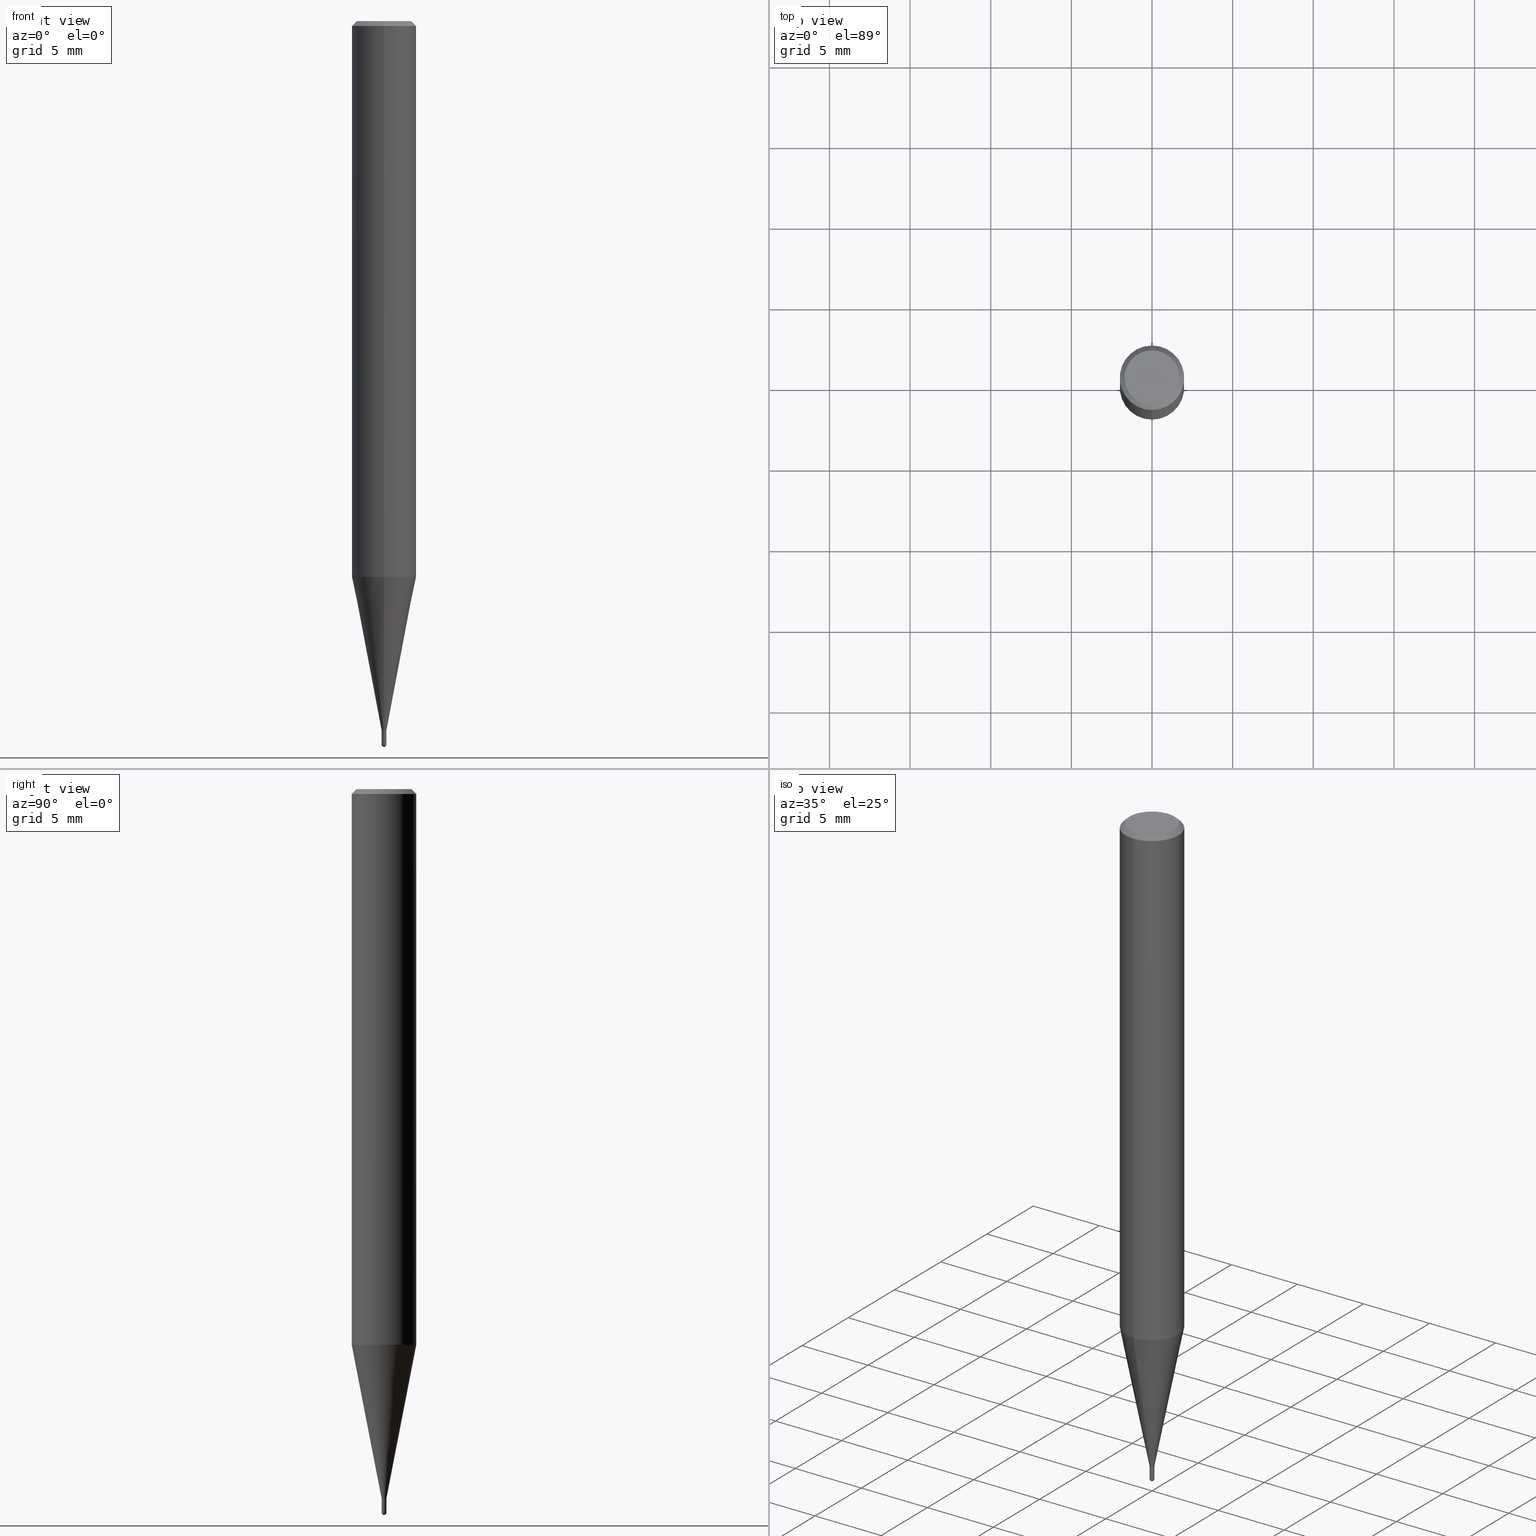
[diagram: canonical four-view strip — front | top / right | iso, engineering-drawing reading convention]
A machine part, canonical four-view strip (front | top / right | iso — engineering-drawing reading convention). The complete STEP part file that produces these views, byte-faithful:
ISO-10303-21;
HEADER;
FILE_DESCRIPTION(('no description'),'unknown implementation level');
FILE_NAME('CSELB2003-010-Huellk.stp','  ',('CIMSOURCE GmbH'),('CADClick - KiM GmbH - www.kimweb.de'),'unknown preprocess','ACIS','unknown authorization');
FILE_SCHEMA(('automotive_design'));
ENDSEC;
DATA;
#1=MECHANICAL_DESIGN_GEOMETRIC_PRESENTATION_REPRESENTATION(' ',(#14,#15,#16,#17,#18,#19,#20,#21,#22,#23,#24,#25,#26,#27,#28,#29,#30,#31,#32,#33,#34,#35,#36,#37,#38,#39,#40,#41,#42,#43,#44,#45,#46,#47,#48,#49,#50,#51,#52,#53,#54,#55,#56,#57,#58,#59,#60,#61,#62,#63,#64,#65,#66,#67,#68,#69,#70,#71,#72,#73,#74),#10);
#2=PRODUCT_DEFINITION_CONTEXT('',#75,'design');
#3=APPLICATION_PROTOCOL_DEFINITION('INTERNATIONAL STANDARD','automotive_design',1994,#75);
#4=PRODUCT_CATEGORY_RELATIONSHIP('NONE','NONE',#76,#77);
#5=SHAPE_DEFINITION_REPRESENTATION(#78,#79);
#6=PRODUCT_DEFINITION_CONTEXT('',#80,'design');
#7=APPLICATION_PROTOCOL_DEFINITION('INTERNATIONAL STANDARD','automotive_design',1994,#80);
#8=PRODUCT_CATEGORY_RELATIONSHIP('NONE','NONE',#81,#82);
#9=SHAPE_DEFINITION_REPRESENTATION(#83,#84);
#10= (GEOMETRIC_REPRESENTATION_CONTEXT(3)GLOBAL_UNCERTAINTY_ASSIGNED_CONTEXT((#87))GLOBAL_UNIT_ASSIGNED_CONTEXT((#89,#90,#91))REPRESENTATION_CONTEXT('NONE','WORKSPACE'));
#14=STYLED_ITEM('',(#93),#94);
#15=STYLED_ITEM('',(#95),#96);
#16=STYLED_ITEM('',(#97),#98);
#17=STYLED_ITEM('',(#99),#100);
#18=STYLED_ITEM('',(#101),#102);
#19=STYLED_ITEM('',(#103),#104);
#20=STYLED_ITEM('',(#105),#106);
#21=STYLED_ITEM('',(#107),#108);
#22=STYLED_ITEM('',(#109),#110);
#23=STYLED_ITEM('',(#111),#112);
#24=STYLED_ITEM('',(#113),#114);
#25=STYLED_ITEM('',(#115),#116);
#26=STYLED_ITEM('',(#117),#118);
#27=STYLED_ITEM('',(#119),#120);
#28=STYLED_ITEM('',(#121),#122);
#29=STYLED_ITEM('',(#123),#124);
#30=STYLED_ITEM('',(#125),#126);
#31=STYLED_ITEM('',(#127),#128);
#32=STYLED_ITEM('',(#129),#130);
#33=STYLED_ITEM('',(#131),#132);
#34=STYLED_ITEM('',(#133),#134);
#35=STYLED_ITEM('',(#135),#136);
#36=STYLED_ITEM('',(#137),#138);
#37=STYLED_ITEM('',(#139),#140);
#38=STYLED_ITEM('',(#141),#142);
#39=STYLED_ITEM('',(#143),#144);
#40=STYLED_ITEM('',(#145),#146);
#41=STYLED_ITEM('',(#147),#148);
#42=STYLED_ITEM('',(#149),#150);
#43=STYLED_ITEM('',(#151),#152);
#44=STYLED_ITEM('',(#153),#154);
#45=STYLED_ITEM('',(#155),#156);
#46=STYLED_ITEM('',(#157),#158);
#47=STYLED_ITEM('',(#159),#160);
#48=STYLED_ITEM('',(#161),#162);
#49=STYLED_ITEM('',(#163),#164);
#50=STYLED_ITEM('',(#165),#166);
#51=STYLED_ITEM('',(#167),#168);
#52=STYLED_ITEM('',(#169),#170);
#53=STYLED_ITEM('',(#171),#172);
#54=STYLED_ITEM('',(#173),#174);
#55=STYLED_ITEM('',(#175),#176);
#56=STYLED_ITEM('',(#177),#178);
#57=STYLED_ITEM('',(#179),#180);
#58=STYLED_ITEM('',(#181),#182);
#59=STYLED_ITEM('',(#183),#184);
#60=STYLED_ITEM('',(#185),#186);
#61=STYLED_ITEM('',(#187),#188);
#62=STYLED_ITEM('',(#189),#190);
#63=STYLED_ITEM('',(#191),#192);
#64=STYLED_ITEM('',(#193),#194);
#65=STYLED_ITEM('',(#195),#196);
#66=STYLED_ITEM('',(#197),#198);
#67=STYLED_ITEM('',(#199),#200);
#68=STYLED_ITEM('',(#201),#202);
#69=STYLED_ITEM('',(#203),#204);
#70=STYLED_ITEM('',(#205),#206);
#71=STYLED_ITEM('',(#207),#208);
#72=STYLED_ITEM('',(#209),#210);
#73=STYLED_ITEM('',(#211),#212);
#74=STYLED_ITEM('',(#213),#214);
#75=APPLICATION_CONTEXT(' ');
#76=PRODUCT_CATEGORY('part','NONE');
#77=PRODUCT_RELATED_PRODUCT_CATEGORY('detail',' ',(#215));
#78=PRODUCT_DEFINITION_SHAPE('NONE','NONE',#216);
#79=ADVANCED_BREP_SHAPE_REPRESENTATION('1',(#172,#217),#10);
#80=APPLICATION_CONTEXT(' ');
#81=PRODUCT_CATEGORY('part','NONE');
#82=PRODUCT_RELATED_PRODUCT_CATEGORY('detail',' ',(#218));
#83=PRODUCT_DEFINITION_SHAPE('NONE','NONE',#219);
#84=ADVANCED_BREP_SHAPE_REPRESENTATION('2',(#154,#220),#10);
#87=UNCERTAINTY_MEASURE_WITH_UNIT(LENGTH_MEASURE(1.0E-006),#89,'','');
#89= (CONVERSION_BASED_UNIT('MILLIMETRE',#223)LENGTH_UNIT()NAMED_UNIT(#226));
#90= (NAMED_UNIT(#228)PLANE_ANGLE_UNIT()SI_UNIT($,.RADIAN.));
#91= (NAMED_UNIT(#228)SOLID_ANGLE_UNIT()SI_UNIT($,.STERADIAN.));
#93=PRESENTATION_STYLE_ASSIGNMENT((#234));
#94=VERTEX_POINT('',#235);
#95=PRESENTATION_STYLE_ASSIGNMENT((#236));
#96=EDGE_CURVE('',#132,#188,#237,.T.);
#97=PRESENTATION_STYLE_ASSIGNMENT((#238));
#98=EDGE_CURVE('',#188,#160,#239,.T.);
#99=PRESENTATION_STYLE_ASSIGNMENT((#240));
#100=EDGE_CURVE('',#198,#178,#241,.T.);
#101=PRESENTATION_STYLE_ASSIGNMENT((#242));
#102=ADVANCED_FACE('',(#243),#244,.T.);
#103=PRESENTATION_STYLE_ASSIGNMENT((#245));
#104=ADVANCED_FACE('',(#246),#247,.T.);
#105=PRESENTATION_STYLE_ASSIGNMENT((#248));
#106=EDGE_CURVE('',#110,#180,#249,.T.);
#107=PRESENTATION_STYLE_ASSIGNMENT((#250));
#108=ADVANCED_FACE('',(#251),#252,.T.);
#109=PRESENTATION_STYLE_ASSIGNMENT((#253));
#110=VERTEX_POINT('',#254);
#111=PRESENTATION_STYLE_ASSIGNMENT((#255));
#112=VERTEX_POINT('',#256);
#113=PRESENTATION_STYLE_ASSIGNMENT((#257));
#114=EDGE_CURVE('',#126,#166,#258,.T.);
#115=PRESENTATION_STYLE_ASSIGNMENT((#259));
#116=EDGE_CURVE('',#198,#126,#260,.T.);
#117=PRESENTATION_STYLE_ASSIGNMENT((#261));
#118=EDGE_CURVE('',#192,#112,#262,.T.);
#119=PRESENTATION_STYLE_ASSIGNMENT((#263));
#120=EDGE_CURVE('',#196,#144,#264,.T.);
#121=PRESENTATION_STYLE_ASSIGNMENT((#265));
#122=ADVANCED_FACE('',(#266),#267,.T.);
#123=PRESENTATION_STYLE_ASSIGNMENT((#268));
#124=ADVANCED_FACE('',(#269),#270,.T.);
#125=PRESENTATION_STYLE_ASSIGNMENT((#271));
#126=VERTEX_POINT('',#272);
#127=PRESENTATION_STYLE_ASSIGNMENT((#273));
#128=EDGE_CURVE('',#188,#132,#274,.T.);
#129=PRESENTATION_STYLE_ASSIGNMENT((#275));
#130=EDGE_CURVE('',#160,#94,#276,.T.);
#131=PRESENTATION_STYLE_ASSIGNMENT((#277));
#132=VERTEX_POINT('',#278);
#133=PRESENTATION_STYLE_ASSIGNMENT((#279));
#134=EDGE_CURVE('',#192,#188,#280,.T.);
#135=PRESENTATION_STYLE_ASSIGNMENT((#281));
#136=EDGE_CURVE('',#150,#210,#282,.T.);
#137=PRESENTATION_STYLE_ASSIGNMENT((#283));
#138=EDGE_CURVE('',#210,#150,#284,.T.);
#139=PRESENTATION_STYLE_ASSIGNMENT((#285));
#140=EDGE_CURVE('',#126,#144,#286,.T.);
#141=PRESENTATION_STYLE_ASSIGNMENT((#287));
#142=ADVANCED_FACE('',(#288),#289,.T.);
#143=PRESENTATION_STYLE_ASSIGNMENT((#290));
#144=VERTEX_POINT('',#291);
#145=PRESENTATION_STYLE_ASSIGNMENT((#292));
#146=EDGE_CURVE('',#144,#126,#293,.T.);
#147=PRESENTATION_STYLE_ASSIGNMENT((#294));
#148=ADVANCED_FACE('',(#295),#296,.T.);
#149=PRESENTATION_STYLE_ASSIGNMENT((#297));
#150=VERTEX_POINT('',#298);
#151=PRESENTATION_STYLE_ASSIGNMENT((#299));
#152=ADVANCED_FACE('',(#300),#301,.T.);
#153=PRESENTATION_STYLE_ASSIGNMENT((#302));
#154=MANIFOLD_SOLID_BREP('2',#303);
#155=PRESENTATION_STYLE_ASSIGNMENT((#304));
#156=EDGE_CURVE('',#150,#110,#305,.T.);
#157=PRESENTATION_STYLE_ASSIGNMENT((#306));
#158=ADVANCED_FACE('',(#307),#308,.T.);
#159=PRESENTATION_STYLE_ASSIGNMENT((#309));
#160=VERTEX_POINT('',#310);
#161=PRESENTATION_STYLE_ASSIGNMENT((#311));
#162=ADVANCED_FACE('',(#312),#313,.T.);
#163=PRESENTATION_STYLE_ASSIGNMENT((#314));
#164=EDGE_CURVE('',#94,#132,#315,.T.);
#165=PRESENTATION_STYLE_ASSIGNMENT((#316));
#166=VERTEX_POINT('',#317);
#167=PRESENTATION_STYLE_ASSIGNMENT((#318));
#168=EDGE_CURVE('',#196,#166,#319,.T.);
#169=PRESENTATION_STYLE_ASSIGNMENT((#320));
#170=EDGE_CURVE('',#180,#110,#321,.T.);
#171=PRESENTATION_STYLE_ASSIGNMENT((#322));
#172=MANIFOLD_SOLID_BREP('1',#323);
#173=PRESENTATION_STYLE_ASSIGNMENT((#324));
#174=EDGE_CURVE('',#180,#110,#325,.T.);
#175=PRESENTATION_STYLE_ASSIGNMENT((#326));
#176=EDGE_CURVE('',#166,#196,#327,.T.);
#177=PRESENTATION_STYLE_ASSIGNMENT((#328));
#178=VERTEX_POINT('',#329);
#179=PRESENTATION_STYLE_ASSIGNMENT((#330));
#180=VERTEX_POINT('',#331);
#181=PRESENTATION_STYLE_ASSIGNMENT((#332));
#182=EDGE_CURVE('',#178,#198,#333,.T.);
#183=PRESENTATION_STYLE_ASSIGNMENT((#334));
#184=EDGE_CURVE('',#180,#210,#335,.T.);
#185=PRESENTATION_STYLE_ASSIGNMENT((#336));
#186=ADVANCED_FACE('',(#337,#338),#339,.T.);
#187=PRESENTATION_STYLE_ASSIGNMENT((#340));
#188=VERTEX_POINT('',#341);
#189=PRESENTATION_STYLE_ASSIGNMENT((#342));
#190=EDGE_CURVE('',#94,#160,#343,.T.);
#191=PRESENTATION_STYLE_ASSIGNMENT((#344));
#192=VERTEX_POINT('',#345);
#193=PRESENTATION_STYLE_ASSIGNMENT((#346));
#194=EDGE_CURVE('',#112,#192,#347,.T.);
#195=PRESENTATION_STYLE_ASSIGNMENT((#348));
#196=VERTEX_POINT('',#349);
#197=PRESENTATION_STYLE_ASSIGNMENT((#350));
#198=VERTEX_POINT('',#351);
#199=PRESENTATION_STYLE_ASSIGNMENT((#352));
#200=EDGE_CURVE('',#144,#178,#353,.T.);
#201=PRESENTATION_STYLE_ASSIGNMENT((#354));
#202=ADVANCED_FACE('',(#355),#356,.T.);
#203=PRESENTATION_STYLE_ASSIGNMENT((#357));
#204=ADVANCED_FACE('',(#358),#359,.T.);
#205=PRESENTATION_STYLE_ASSIGNMENT((#360));
#206=EDGE_CURVE('',#132,#112,#361,.T.);
#207=PRESENTATION_STYLE_ASSIGNMENT((#362));
#208=ADVANCED_FACE('',(#363),#364,.T.);
#209=PRESENTATION_STYLE_ASSIGNMENT((#365));
#210=VERTEX_POINT('',#366);
#211=PRESENTATION_STYLE_ASSIGNMENT((#367));
#212=ADVANCED_FACE('',(#368),#369,.T.);
#213=PRESENTATION_STYLE_ASSIGNMENT((#370));
#214=ADVANCED_FACE('',(#371),#372,.T.);
#215=PRODUCT('1','1','PART-1-DESC',(#373));
#216=PRODUCT_DEFINITION('NONE','NONE',#374,#2);
#217=AXIS2_PLACEMENT_3D('',#375,#376,#377);
#218=PRODUCT('2','2','PART-2-DESC',(#378));
#219=PRODUCT_DEFINITION('NONE','NONE',#379,#6);
#220=AXIS2_PLACEMENT_3D('',#380,#381,#382);
#223=LENGTH_MEASURE_WITH_UNIT(LENGTH_MEASURE(1.0),#383);
#226=DIMENSIONAL_EXPONENTS(1.0,0.0,0.0,0.0,0.0,0.0,0.0);
#228=DIMENSIONAL_EXPONENTS(0.0,0.0,0.0,0.0,0.0,0.0,0.0);
#234=POINT_STYLE(' ',#384,POSITIVE_LENGTH_MEASURE(1.0E-006),#385);
#235=CARTESIAN_POINT('',(1.77506690986554E-017,-0.14495,-44.76));
#236=CURVE_STYLE('',#386,POSITIVE_LENGTH_MEASURE(1.0E-006),#387);
#237=CIRCLE('',#388,0.14495);
#238=CURVE_STYLE('',#389,POSITIVE_LENGTH_MEASURE(1.0E-006),#390);
#239=LINE('',#391,#392);
#240=CURVE_STYLE('',#393,POSITIVE_LENGTH_MEASURE(1.0E-006),#394);
#241=CIRCLE('',#395,1.7);
#242=SURFACE_STYLE_USAGE(.BOTH.,#396);
#243=FACE_OUTER_BOUND('',#397,.T.);
#244=SPHERICAL_SURFACE('',#398,0.15);
#245=SURFACE_STYLE_USAGE(.BOTH.,#399);
#246=FACE_OUTER_BOUND('',#400,.T.);
#247=PLANE('',#401);
#248=CURVE_STYLE('',#402,POSITIVE_LENGTH_MEASURE(1.0E-006),#403);
#249=CIRCLE('',#404,0.15);
#250=SURFACE_STYLE_USAGE(.BOTH.,#405);
#251=FACE_OUTER_BOUND('',#406,.T.);
#252=SPHERICAL_SURFACE('',#407,0.15);
#253=POINT_STYLE(' ',#408,POSITIVE_LENGTH_MEASURE(1.0E-006),#409);
#254=CARTESIAN_POINT('',(0.0,0.15,-44.85));
#255=POINT_STYLE(' ',#410,POSITIVE_LENGTH_MEASURE(1.0E-006),#411);
#256=CARTESIAN_POINT('',(2.44915147732706E-016,-1.99995,-34.457));
#257=CURVE_STYLE('',#412,POSITIVE_LENGTH_MEASURE(1.0E-006),#413);
#258=LINE('',#414,#415);
#259=CURVE_STYLE('',#416,POSITIVE_LENGTH_MEASURE(1.0E-006),#417);
#260=LINE('',#418,#419);
#261=CURVE_STYLE('',#420,POSITIVE_LENGTH_MEASURE(1.0E-006),#421);
#262=CIRCLE('',#422,1.99995);
#263=CURVE_STYLE('',#423,POSITIVE_LENGTH_MEASURE(1.0E-006),#424);
#264=LINE('',#425,#426);
#265=SURFACE_STYLE_USAGE(.BOTH.,#427);
#266=FACE_OUTER_BOUND('',#428,.T.);
#267=CYLINDRICAL_SURFACE('',#429,2.0);
#268=SURFACE_STYLE_USAGE(.BOTH.,#430);
#269=FACE_OUTER_BOUND('',#431,.T.);
#270=CONICAL_SURFACE('',#432,0.14995,0.00111111065386396);
#271=POINT_STYLE(' ',#433,POSITIVE_LENGTH_MEASURE(1.0E-006),#434);
#272=CARTESIAN_POINT('',(0.0,2.0,-0.299999999999997));
#273=CURVE_STYLE('',#435,POSITIVE_LENGTH_MEASURE(1.0E-006),#436);
#274=CIRCLE('',#437,0.14495);
#275=CURVE_STYLE('',#438,POSITIVE_LENGTH_MEASURE(1.0E-006),#439);
#276=CIRCLE('',#440,0.14495);
#277=POINT_STYLE(' ',#441,POSITIVE_LENGTH_MEASURE(1.0E-006),#442);
#278=CARTESIAN_POINT('',(1.77506690986554E-017,-0.14495,-44.0));
#279=CURVE_STYLE('',#443,POSITIVE_LENGTH_MEASURE(1.0E-006),#444);
#280=LINE('',#445,#446);
#281=CURVE_STYLE('',#447,POSITIVE_LENGTH_MEASURE(1.0E-006),#448);
#282=CIRCLE('',#449,0.1499);
#283=CURVE_STYLE('',#450,POSITIVE_LENGTH_MEASURE(1.0E-006),#451);
#284=CIRCLE('',#452,0.1499);
#285=CURVE_STYLE('',#453,POSITIVE_LENGTH_MEASURE(1.0E-006),#454);
#286=CIRCLE('',#455,2.0);
#287=SURFACE_STYLE_USAGE(.BOTH.,#456);
#288=FACE_OUTER_BOUND('',#457,.T.);
#289=CONICAL_SURFACE('',#458,1.07245,0.19198911666217);
#290=POINT_STYLE(' ',#459,POSITIVE_LENGTH_MEASURE(1.0E-006),#460);
#291=CARTESIAN_POINT('',(2.44921270764475E-016,-2.0,-0.299999999999997));
#292=CURVE_STYLE('',#461,POSITIVE_LENGTH_MEASURE(1.0E-006),#462);
#293=CIRCLE('',#463,2.0);
#294=SURFACE_STYLE_USAGE(.BOTH.,#464);
#295=FACE_OUTER_BOUND('',#465,.T.);
#296=CYLINDRICAL_SURFACE('',#466,0.14495);
#297=POINT_STYLE(' ',#467,POSITIVE_LENGTH_MEASURE(1.0E-006),#468);
#298=CARTESIAN_POINT('',(0.0,0.1499,-44.76));
#299=SURFACE_STYLE_USAGE(.BOTH.,#469);
#300=FACE_OUTER_BOUND('',#470,.T.);
#301=CONICAL_SURFACE('',#471,1.07245,0.19198911666217);
#302=SURFACE_STYLE_USAGE(.BOTH.,#472);
#303=CLOSED_SHELL('',(#102,#124,#208,#212,#108));
#304=CURVE_STYLE('',#473,POSITIVE_LENGTH_MEASURE(1.0E-006),#474);
#305=LINE('',#475,#476);
#306=SURFACE_STYLE_USAGE(.BOTH.,#477);
#307=FACE_OUTER_BOUND('',#478,.T.);
#308=CONICAL_SURFACE('',#479,1.85,0.785398163397453);
#309=POINT_STYLE(' ',#480,POSITIVE_LENGTH_MEASURE(1.0E-006),#481);
#310=CARTESIAN_POINT('',(0.0,0.14495,-44.76));
#311=SURFACE_STYLE_USAGE(.BOTH.,#482);
#312=FACE_OUTER_BOUND('',#483,.T.);
#313=CONICAL_SURFACE('',#484,1.85,0.785398163397453);
#314=CURVE_STYLE('',#485,POSITIVE_LENGTH_MEASURE(1.0E-006),#486);
#315=LINE('',#487,#488);
#316=POINT_STYLE(' ',#489,POSITIVE_LENGTH_MEASURE(1.0E-006),#490);
#317=CARTESIAN_POINT('',(0.0,2.0,-34.457));
#318=CURVE_STYLE('',#491,POSITIVE_LENGTH_MEASURE(1.0E-006),#492);
#319=CIRCLE('',#493,2.0);
#320=CURVE_STYLE('',#494,POSITIVE_LENGTH_MEASURE(1.0E-006),#495);
#321=CIRCLE('',#496,0.15);
#322=SURFACE_STYLE_USAGE(.BOTH.,#497);
#323=CLOSED_SHELL('',(#148,#142,#214,#162,#186,#204,#158,#122,#152,#202,#104));
#324=CURVE_STYLE('',#498,POSITIVE_LENGTH_MEASURE(1.0E-006),#499);
#325=CIRCLE('',#500,0.15);
#326=CURVE_STYLE('',#501,POSITIVE_LENGTH_MEASURE(1.0E-006),#502);
#327=CIRCLE('',#503,2.0);
#328=POINT_STYLE(' ',#504,POSITIVE_LENGTH_MEASURE(1.0E-006),#505);
#329=CARTESIAN_POINT('',(2.08183080149804E-016,-1.7,0.0));
#330=POINT_STYLE(' ',#506,POSITIVE_LENGTH_MEASURE(1.0E-006),#507);
#331=CARTESIAN_POINT('',(1.83690953073356E-017,-0.15,-44.85));
#332=CURVE_STYLE('',#508,POSITIVE_LENGTH_MEASURE(1.0E-006),#509);
#333=CIRCLE('',#510,1.7);
#334=CURVE_STYLE('',#511,POSITIVE_LENGTH_MEASURE(1.0E-006),#512);
#335=LINE('',#513,#514);
#336=SURFACE_STYLE_USAGE(.BOTH.,#515);
#337=FACE_OUTER_BOUND('',#516,.T.);
#338=FACE_BOUND('',#517,.T.);
#339=PLANE('',#518);
#340=POINT_STYLE(' ',#519,POSITIVE_LENGTH_MEASURE(1.0E-006),#520);
#341=CARTESIAN_POINT('',(0.0,0.14495,-44.0));
#342=CURVE_STYLE('',#521,POSITIVE_LENGTH_MEASURE(1.0E-006),#522);
#343=CIRCLE('',#523,0.14495);
#344=POINT_STYLE(' ',#524,POSITIVE_LENGTH_MEASURE(1.0E-006),#525);
#345=CARTESIAN_POINT('',(0.0,1.99995,-34.457));
#346=CURVE_STYLE('',#526,POSITIVE_LENGTH_MEASURE(1.0E-006),#527);
#347=CIRCLE('',#528,1.99995);
#348=POINT_STYLE(' ',#529,POSITIVE_LENGTH_MEASURE(1.0E-006),#530);
#349=CARTESIAN_POINT('',(2.44921270764475E-016,-2.0,-34.457));
#350=POINT_STYLE(' ',#531,POSITIVE_LENGTH_MEASURE(1.0E-006),#532);
#351=CARTESIAN_POINT('',(0.0,1.7,0.0));
#352=CURVE_STYLE('',#533,POSITIVE_LENGTH_MEASURE(1.0E-006),#534);
#353=LINE('',#535,#536);
#354=SURFACE_STYLE_USAGE(.BOTH.,#537);
#355=FACE_OUTER_BOUND('',#538,.T.);
#356=CYLINDRICAL_SURFACE('',#539,0.14495);
#357=SURFACE_STYLE_USAGE(.BOTH.,#540);
#358=FACE_OUTER_BOUND('',#541,.T.);
#359=PLANE('',#542);
#360=CURVE_STYLE('',#543,POSITIVE_LENGTH_MEASURE(1.0E-006),#544);
#361=LINE('',#545,#546);
#362=SURFACE_STYLE_USAGE(.BOTH.,#547);
#363=FACE_OUTER_BOUND('',#548,.T.);
#364=PLANE('',#549);
#365=POINT_STYLE(' ',#550,POSITIVE_LENGTH_MEASURE(1.0E-006),#551);
#366=CARTESIAN_POINT('',(1.83568492437974E-017,-0.1499,-44.76));
#367=SURFACE_STYLE_USAGE(.BOTH.,#552);
#368=FACE_OUTER_BOUND('',#553,.T.);
#369=CONICAL_SURFACE('',#554,0.14995,0.00111111065386396);
#370=SURFACE_STYLE_USAGE(.BOTH.,#555);
#371=FACE_OUTER_BOUND('',#556,.T.);
#372=CYLINDRICAL_SURFACE('',#557,2.0);
#373=PRODUCT_CONTEXT('',#75,'mechanical');
#374=PRODUCT_DEFINITION_FORMATION_WITH_SPECIFIED_SOURCE(' ','NONE',#215,.NOT_KNOWN.);
#375=CARTESIAN_POINT('',(0.0,0.0,0.0));
#376=DIRECTION('',(0.0,0.0,1.0));
#377=DIRECTION('',(1.0,0.0,0.0));
#378=PRODUCT_CONTEXT('',#80,'mechanical');
#379=PRODUCT_DEFINITION_FORMATION_WITH_SPECIFIED_SOURCE(' ','NONE',#218,.NOT_KNOWN.);
#380=CARTESIAN_POINT('',(0.0,0.0,0.0));
#381=DIRECTION('',(0.0,0.0,1.0));
#382=DIRECTION('',(1.0,0.0,0.0));
#383= (NAMED_UNIT(#226)LENGTH_UNIT()SI_UNIT(.MILLI.,.METRE.));
#384=PRE_DEFINED_MARKER('');
#385=COLOUR_RGB('',0.498039215803146,0.498039215803146,0.498039215803146);
#386=DRAUGHTING_PRE_DEFINED_CURVE_FONT('continuous');
#387=COLOUR_RGB('',0.498039215803146,0.498039215803146,0.498039215803146);
#388=AXIS2_PLACEMENT_3D('',#559,#560,#561);
#389=DRAUGHTING_PRE_DEFINED_CURVE_FONT('continuous');
#390=COLOUR_RGB('',0.498039215803146,0.498039215803146,0.498039215803146);
#391=CARTESIAN_POINT('',(-1.77506690986554E-017,0.14495,-44.38));
#392=VECTOR('',#562,1.0);
#393=DRAUGHTING_PRE_DEFINED_CURVE_FONT('continuous');
#394=COLOUR_RGB('',0.498039215803146,0.498039215803146,0.498039215803146);
#395=AXIS2_PLACEMENT_3D('',#563,#564,#565);
#396=SURFACE_SIDE_STYLE('',(#566));
#397=EDGE_LOOP('',(#567,#568));
#398=AXIS2_PLACEMENT_3D('',#569,#570,#571);
#399=SURFACE_SIDE_STYLE('',(#572));
#400=EDGE_LOOP('',(#573,#574));
#401=AXIS2_PLACEMENT_3D('',#575,#576,#577);
#402=DRAUGHTING_PRE_DEFINED_CURVE_FONT('continuous');
#403=COLOUR_RGB('',0.800000011920929,0.800000011920929,0.800000011920929);
#404=AXIS2_PLACEMENT_3D('',#578,#579,#580);
#405=SURFACE_SIDE_STYLE('',(#581));
#406=EDGE_LOOP('',(#582,#583));
#407=AXIS2_PLACEMENT_3D('',#584,#585,#586);
#408=PRE_DEFINED_MARKER('');
#409=COLOUR_RGB('',0.800000011920929,0.800000011920929,0.800000011920929);
#410=PRE_DEFINED_MARKER('');
#411=COLOUR_RGB('',0.498039215803146,0.498039215803146,0.498039215803146);
#412=DRAUGHTING_PRE_DEFINED_CURVE_FONT('continuous');
#413=COLOUR_RGB('',0.498039215803146,0.498039215803146,0.498039215803146);
#414=CARTESIAN_POINT('',(-2.44921270764475E-016,2.0,-17.3785));
#415=VECTOR('',#587,1.0);
#416=DRAUGHTING_PRE_DEFINED_CURVE_FONT('continuous');
#417=COLOUR_RGB('',0.498039215803146,0.498039215803146,0.498039215803146);
#418=CARTESIAN_POINT('',(-2.2655217545714E-016,1.85,-0.149999999999999));
#419=VECTOR('',#588,1.0);
#420=DRAUGHTING_PRE_DEFINED_CURVE_FONT('continuous');
#421=COLOUR_RGB('',0.498039215803146,0.498039215803146,0.498039215803146);
#422=AXIS2_PLACEMENT_3D('',#589,#590,#591);
#423=DRAUGHTING_PRE_DEFINED_CURVE_FONT('continuous');
#424=COLOUR_RGB('',0.498039215803146,0.498039215803146,0.498039215803146);
#425=CARTESIAN_POINT('',(2.44921270764475E-016,-2.0,-17.3785));
#426=VECTOR('',#592,1.0);
#427=SURFACE_SIDE_STYLE('',(#593));
#428=EDGE_LOOP('',(#594,#595,#596,#597));
#429=AXIS2_PLACEMENT_3D('',#598,#599,#600);
#430=SURFACE_SIDE_STYLE('',(#601));
#431=EDGE_LOOP('',(#602,#603,#604,#605));
#432=AXIS2_PLACEMENT_3D('',#606,#607,#608);
#433=PRE_DEFINED_MARKER('');
#434=COLOUR_RGB('',0.498039215803146,0.498039215803146,0.498039215803146);
#435=DRAUGHTING_PRE_DEFINED_CURVE_FONT('continuous');
#436=COLOUR_RGB('',0.498039215803146,0.498039215803146,0.498039215803146);
#437=AXIS2_PLACEMENT_3D('',#609,#610,#611);
#438=DRAUGHTING_PRE_DEFINED_CURVE_FONT('continuous');
#439=COLOUR_RGB('',0.498039215803146,0.498039215803146,0.498039215803146);
#440=AXIS2_PLACEMENT_3D('',#612,#613,#614);
#441=PRE_DEFINED_MARKER('');
#442=COLOUR_RGB('',0.498039215803146,0.498039215803146,0.498039215803146);
#443=DRAUGHTING_PRE_DEFINED_CURVE_FONT('continuous');
#444=COLOUR_RGB('',0.498039215803146,0.498039215803146,0.498039215803146);
#445=CARTESIAN_POINT('',(-1.31332908415681E-016,1.07245,-39.2285));
#446=VECTOR('',#615,1.0);
#447=DRAUGHTING_PRE_DEFINED_CURVE_FONT('continuous');
#448=COLOUR_RGB('',0.800000011920929,0.800000011920929,0.800000011920929);
#449=AXIS2_PLACEMENT_3D('',#616,#617,#618);
#450=DRAUGHTING_PRE_DEFINED_CURVE_FONT('continuous');
#451=COLOUR_RGB('',0.800000011920929,0.800000011920929,0.800000011920929);
#452=AXIS2_PLACEMENT_3D('',#619,#620,#621);
#453=DRAUGHTING_PRE_DEFINED_CURVE_FONT('continuous');
#454=COLOUR_RGB('',0.498039215803146,0.498039215803146,0.498039215803146);
#455=AXIS2_PLACEMENT_3D('',#622,#623,#624);
#456=SURFACE_SIDE_STYLE('',(#625));
#457=EDGE_LOOP('',(#626,#627,#628,#629));
#458=AXIS2_PLACEMENT_3D('',#630,#631,#632);
#459=PRE_DEFINED_MARKER('');
#460=COLOUR_RGB('',0.498039215803146,0.498039215803146,0.498039215803146);
#461=DRAUGHTING_PRE_DEFINED_CURVE_FONT('continuous');
#462=COLOUR_RGB('',0.498039215803146,0.498039215803146,0.498039215803146);
#463=AXIS2_PLACEMENT_3D('',#633,#634,#635);
#464=SURFACE_SIDE_STYLE('',(#636));
#465=EDGE_LOOP('',(#637,#638,#639,#640));
#466=AXIS2_PLACEMENT_3D('',#641,#642,#643);
#467=PRE_DEFINED_MARKER('');
#468=COLOUR_RGB('',0.800000011920929,0.800000011920929,0.800000011920929);
#469=SURFACE_SIDE_STYLE('',(#644));
#470=EDGE_LOOP('',(#645,#646,#647,#648));
#471=AXIS2_PLACEMENT_3D('',#649,#650,#651);
#472=SURFACE_SIDE_STYLE('',(#652));
#473=DRAUGHTING_PRE_DEFINED_CURVE_FONT('continuous');
#474=COLOUR_RGB('',0.800000011920929,0.800000011920929,0.800000011920929);
#475=CARTESIAN_POINT('',(-1.83629722755665E-017,0.14995,-44.805));
#476=VECTOR('',#653,1.0);
#477=SURFACE_SIDE_STYLE('',(#654));
#478=EDGE_LOOP('',(#655,#656,#657,#658));
#479=AXIS2_PLACEMENT_3D('',#659,#660,#661);
#480=PRE_DEFINED_MARKER('');
#481=COLOUR_RGB('',0.498039215803146,0.498039215803146,0.498039215803146);
#482=SURFACE_SIDE_STYLE('',(#662));
#483=EDGE_LOOP('',(#663,#664,#665,#666));
#484=AXIS2_PLACEMENT_3D('',#667,#668,#669);
#485=DRAUGHTING_PRE_DEFINED_CURVE_FONT('continuous');
#486=COLOUR_RGB('',0.498039215803146,0.498039215803146,0.498039215803146);
#487=CARTESIAN_POINT('',(1.77506690986554E-017,-0.14495,-44.38));
#488=VECTOR('',#670,1.0);
#489=PRE_DEFINED_MARKER('');
#490=COLOUR_RGB('',0.498039215803146,0.498039215803146,0.498039215803146);
#491=DRAUGHTING_PRE_DEFINED_CURVE_FONT('continuous');
#492=COLOUR_RGB('',0.498039215803146,0.498039215803146,0.498039215803146);
#493=AXIS2_PLACEMENT_3D('',#671,#672,#673);
#494=DRAUGHTING_PRE_DEFINED_CURVE_FONT('continuous');
#495=COLOUR_RGB('',0.800000011920929,0.800000011920929,0.800000011920929);
#496=AXIS2_PLACEMENT_3D('',#674,#675,#676);
#497=SURFACE_SIDE_STYLE('',(#677));
#498=DRAUGHTING_PRE_DEFINED_CURVE_FONT('continuous');
#499=COLOUR_RGB('',0.800000011920929,0.800000011920929,0.800000011920929);
#500=AXIS2_PLACEMENT_3D('',#678,#679,#680);
#501=DRAUGHTING_PRE_DEFINED_CURVE_FONT('continuous');
#502=COLOUR_RGB('',0.498039215803146,0.498039215803146,0.498039215803146);
#503=AXIS2_PLACEMENT_3D('',#681,#682,#683);
#504=PRE_DEFINED_MARKER('');
#505=COLOUR_RGB('',0.498039215803146,0.498039215803146,0.498039215803146);
#506=PRE_DEFINED_MARKER('');
#507=COLOUR_RGB('',0.800000011920929,0.800000011920929,0.800000011920929);
#508=DRAUGHTING_PRE_DEFINED_CURVE_FONT('continuous');
#509=COLOUR_RGB('',0.498039215803146,0.498039215803146,0.498039215803146);
#510=AXIS2_PLACEMENT_3D('',#684,#685,#686);
#511=DRAUGHTING_PRE_DEFINED_CURVE_FONT('continuous');
#512=COLOUR_RGB('',0.800000011920929,0.800000011920929,0.800000011920929);
#513=CARTESIAN_POINT('',(1.83629722755665E-017,-0.14995,-44.805));
#514=VECTOR('',#687,1.0);
#515=SURFACE_SIDE_STYLE('',(#688));
#516=EDGE_LOOP('',(#689,#690));
#517=EDGE_LOOP('',(#691,#692));
#518=AXIS2_PLACEMENT_3D('',#693,#694,#695);
#519=PRE_DEFINED_MARKER('');
#520=COLOUR_RGB('',0.498039215803146,0.498039215803146,0.498039215803146);
#521=DRAUGHTING_PRE_DEFINED_CURVE_FONT('continuous');
#522=COLOUR_RGB('',0.498039215803146,0.498039215803146,0.498039215803146);
#523=AXIS2_PLACEMENT_3D('',#696,#697,#698);
#524=PRE_DEFINED_MARKER('');
#525=COLOUR_RGB('',0.498039215803146,0.498039215803146,0.498039215803146);
#526=DRAUGHTING_PRE_DEFINED_CURVE_FONT('continuous');
#527=COLOUR_RGB('',0.498039215803146,0.498039215803146,0.498039215803146);
#528=AXIS2_PLACEMENT_3D('',#699,#700,#701);
#529=PRE_DEFINED_MARKER('');
#530=COLOUR_RGB('',0.498039215803146,0.498039215803146,0.498039215803146);
#531=PRE_DEFINED_MARKER('');
#532=COLOUR_RGB('',0.498039215803146,0.498039215803146,0.498039215803146);
#533=DRAUGHTING_PRE_DEFINED_CURVE_FONT('continuous');
#534=COLOUR_RGB('',0.498039215803146,0.498039215803146,0.498039215803146);
#535=CARTESIAN_POINT('',(2.2655217545714E-016,-1.85,-0.149999999999999));
#536=VECTOR('',#702,1.0);
#537=SURFACE_SIDE_STYLE('',(#703));
#538=EDGE_LOOP('',(#704,#705,#706,#707));
#539=AXIS2_PLACEMENT_3D('',#708,#709,#710);
#540=SURFACE_SIDE_STYLE('',(#711));
#541=EDGE_LOOP('',(#712,#713));
#542=AXIS2_PLACEMENT_3D('',#714,#715,#716);
#543=DRAUGHTING_PRE_DEFINED_CURVE_FONT('continuous');
#544=COLOUR_RGB('',0.498039215803146,0.498039215803146,0.498039215803146);
#545=CARTESIAN_POINT('',(1.31332908415681E-016,-1.07245,-39.2285));
#546=VECTOR('',#717,1.0);
#547=SURFACE_SIDE_STYLE('',(#718));
#548=EDGE_LOOP('',(#719,#720));
#549=AXIS2_PLACEMENT_3D('',#721,#722,#723);
#550=PRE_DEFINED_MARKER('');
#551=COLOUR_RGB('',0.800000011920929,0.800000011920929,0.800000011920929);
#552=SURFACE_SIDE_STYLE('',(#724));
#553=EDGE_LOOP('',(#725,#726,#727,#728));
#554=AXIS2_PLACEMENT_3D('',#729,#730,#731);
#555=SURFACE_SIDE_STYLE('',(#732));
#556=EDGE_LOOP('',(#733,#734,#735,#736));
#557=AXIS2_PLACEMENT_3D('',#737,#738,#739);
#559=CARTESIAN_POINT('',(0.0,0.0,-44.0));
#560=DIRECTION('',(0.0,0.0,-1.0));
#561=DIRECTION('',(0.0,1.0,0.0));
#562=DIRECTION('',(0.0,0.0,-1.0));
#563=CARTESIAN_POINT('',(0.0,0.0,0.0));
#564=DIRECTION('',(0.0,0.0,-1.0));
#565=DIRECTION('',(0.0,1.0,0.0));
#566=SURFACE_STYLE_FILL_AREA(#740);
#567=ORIENTED_EDGE('',*,*,#174,.F.);
#568=ORIENTED_EDGE('',*,*,#170,.T.);
#569=CARTESIAN_POINT('',(0.0,0.0,-44.85));
#570=DIRECTION('',(0.0,1.0,0.0));
#571=DIRECTION('',(0.0,0.0,-1.0));
#572=SURFACE_STYLE_FILL_AREA(#741);
#573=ORIENTED_EDGE('',*,*,#130,.T.);
#574=ORIENTED_EDGE('',*,*,#190,.T.);
#575=CARTESIAN_POINT('',(0.0,0.072475,-44.76));
#576=DIRECTION('',(0.0,0.0,-1.0));
#577=DIRECTION('',(0.0,1.0,0.0));
#578=CARTESIAN_POINT('',(0.0,0.0,-44.85));
#579=DIRECTION('',(0.0,0.0,-1.0));
#580=DIRECTION('',(0.0,1.0,0.0));
#581=SURFACE_STYLE_FILL_AREA(#742);
#582=ORIENTED_EDGE('',*,*,#174,.T.);
#583=ORIENTED_EDGE('',*,*,#106,.T.);
#584=CARTESIAN_POINT('',(0.0,0.0,-44.85));
#585=DIRECTION('',(0.0,1.0,0.0));
#586=DIRECTION('',(0.0,0.0,-1.0));
#587=DIRECTION('',(0.0,0.0,-1.0));
#588=DIRECTION('',(-8.6592745707194E-017,0.707106781186551,-0.707106781186544));
#589=CARTESIAN_POINT('',(0.0,0.0,-34.457));
#590=DIRECTION('',(0.0,0.0,-1.0));
#591=DIRECTION('',(0.0,1.0,0.0));
#592=DIRECTION('',(-0.0,-0.0,1.0));
#593=SURFACE_STYLE_FILL_AREA(#743);
#594=ORIENTED_EDGE('',*,*,#114,.T.);
#595=ORIENTED_EDGE('',*,*,#168,.F.);
#596=ORIENTED_EDGE('',*,*,#120,.T.);
#597=ORIENTED_EDGE('',*,*,#146,.T.);
#598=CARTESIAN_POINT('',(0.0,0.0,-17.3785));
#599=DIRECTION('',(-0.0,-0.0,1.0));
#600=DIRECTION('',(0.0,1.0,0.0));
#601=SURFACE_STYLE_FILL_AREA(#744);
#602=ORIENTED_EDGE('',*,*,#156,.F.);
#603=ORIENTED_EDGE('',*,*,#136,.T.);
#604=ORIENTED_EDGE('',*,*,#184,.F.);
#605=ORIENTED_EDGE('',*,*,#106,.F.);
#606=CARTESIAN_POINT('',(0.0,0.0,-44.805));
#607=DIRECTION('',(0.0,-0.0,-1.0));
#608=DIRECTION('',(0.0,1.0,0.0));
#609=CARTESIAN_POINT('',(0.0,0.0,-44.0));
#610=DIRECTION('',(0.0,0.0,-1.0));
#611=DIRECTION('',(0.0,1.0,0.0));
#612=CARTESIAN_POINT('',(0.0,0.0,-44.76));
#613=DIRECTION('',(0.0,0.0,-1.0));
#614=DIRECTION('',(0.0,1.0,0.0));
#615=DIRECTION('',(2.33669392942694E-017,-0.190811841056793,-0.981626630299177));
#616=CARTESIAN_POINT('',(0.0,0.0,-44.76));
#617=DIRECTION('',(0.0,0.0,-1.0));
#618=DIRECTION('',(0.0,1.0,0.0));
#619=CARTESIAN_POINT('',(0.0,0.0,-44.76));
#620=DIRECTION('',(0.0,0.0,-1.0));
#621=DIRECTION('',(0.0,1.0,0.0));
#622=CARTESIAN_POINT('',(0.0,0.0,-0.299999999999997));
#623=DIRECTION('',(0.0,0.0,-1.0));
#624=DIRECTION('',(0.0,1.0,0.0));
#625=SURFACE_STYLE_FILL_AREA(#745);
#626=ORIENTED_EDGE('',*,*,#134,.F.);
#627=ORIENTED_EDGE('',*,*,#118,.T.);
#628=ORIENTED_EDGE('',*,*,#206,.F.);
#629=ORIENTED_EDGE('',*,*,#128,.F.);
#630=CARTESIAN_POINT('',(0.0,0.0,-39.2285));
#631=DIRECTION('',(-0.0,-0.0,1.0));
#632=DIRECTION('',(0.0,1.0,0.0));
#633=CARTESIAN_POINT('',(0.0,0.0,-0.299999999999997));
#634=DIRECTION('',(0.0,0.0,-1.0));
#635=DIRECTION('',(0.0,1.0,0.0));
#636=SURFACE_STYLE_FILL_AREA(#746);
#637=ORIENTED_EDGE('',*,*,#98,.F.);
#638=ORIENTED_EDGE('',*,*,#128,.T.);
#639=ORIENTED_EDGE('',*,*,#164,.F.);
#640=ORIENTED_EDGE('',*,*,#130,.F.);
#641=CARTESIAN_POINT('',(0.0,0.0,-44.38));
#642=DIRECTION('',(-0.0,-0.0,1.0));
#643=DIRECTION('',(0.0,1.0,0.0));
#644=SURFACE_STYLE_FILL_AREA(#747);
#645=ORIENTED_EDGE('',*,*,#134,.T.);
#646=ORIENTED_EDGE('',*,*,#96,.F.);
#647=ORIENTED_EDGE('',*,*,#206,.T.);
#648=ORIENTED_EDGE('',*,*,#194,.T.);
#649=CARTESIAN_POINT('',(0.0,0.0,-39.2285));
#650=DIRECTION('',(-0.0,-0.0,1.0));
#651=DIRECTION('',(0.0,1.0,0.0));
#652=SURFACE_STYLE_FILL_AREA(#748);
#653=DIRECTION('',(-1.36067288654788E-019,0.00111111042524057,-0.999999382716621));
#654=SURFACE_STYLE_FILL_AREA(#749);
#655=ORIENTED_EDGE('',*,*,#116,.T.);
#656=ORIENTED_EDGE('',*,*,#146,.F.);
#657=ORIENTED_EDGE('',*,*,#200,.T.);
#658=ORIENTED_EDGE('',*,*,#182,.T.);
#659=CARTESIAN_POINT('',(0.0,0.0,-0.149999999999999));
#660=DIRECTION('',(0.0,-0.0,-1.0));
#661=DIRECTION('',(0.0,1.0,0.0));
#662=SURFACE_STYLE_FILL_AREA(#750);
#663=ORIENTED_EDGE('',*,*,#116,.F.);
#664=ORIENTED_EDGE('',*,*,#100,.T.);
#665=ORIENTED_EDGE('',*,*,#200,.F.);
#666=ORIENTED_EDGE('',*,*,#140,.F.);
#667=CARTESIAN_POINT('',(0.0,0.0,-0.149999999999999));
#668=DIRECTION('',(0.0,-0.0,-1.0));
#669=DIRECTION('',(0.0,1.0,0.0));
#670=DIRECTION('',(-0.0,-0.0,1.0));
#671=CARTESIAN_POINT('',(0.0,0.0,-34.457));
#672=DIRECTION('',(0.0,0.0,-1.0));
#673=DIRECTION('',(0.0,1.0,0.0));
#674=CARTESIAN_POINT('',(0.0,0.0,-44.85));
#675=DIRECTION('',(0.0,0.0,-1.0));
#676=DIRECTION('',(0.0,1.0,0.0));
#677=SURFACE_STYLE_FILL_AREA(#751);
#678=CARTESIAN_POINT('',(0.0,0.0,-44.85));
#679=DIRECTION('',(1.0,0.0,1.22460635382239E-016));
#680=DIRECTION('',(-1.22460635382239E-016,0.0,1.0));
#681=CARTESIAN_POINT('',(0.0,0.0,-34.457));
#682=DIRECTION('',(0.0,0.0,-1.0));
#683=DIRECTION('',(0.0,1.0,0.0));
#684=CARTESIAN_POINT('',(0.0,0.0,0.0));
#685=DIRECTION('',(0.0,0.0,-1.0));
#686=DIRECTION('',(0.0,1.0,0.0));
#687=DIRECTION('',(-1.36067288654788E-019,0.00111111042524057,0.999999382716621));
#688=SURFACE_STYLE_FILL_AREA(#752);
#689=ORIENTED_EDGE('',*,*,#176,.T.);
#690=ORIENTED_EDGE('',*,*,#168,.T.);
#691=ORIENTED_EDGE('',*,*,#118,.F.);
#692=ORIENTED_EDGE('',*,*,#194,.F.);
#693=CARTESIAN_POINT('',(0.0,1.0,-34.457));
#694=DIRECTION('',(0.0,0.0,-1.0));
#695=DIRECTION('',(0.0,1.0,0.0));
#696=CARTESIAN_POINT('',(0.0,0.0,-44.76));
#697=DIRECTION('',(0.0,0.0,-1.0));
#698=DIRECTION('',(0.0,1.0,0.0));
#699=CARTESIAN_POINT('',(0.0,0.0,-34.457));
#700=DIRECTION('',(0.0,0.0,-1.0));
#701=DIRECTION('',(0.0,1.0,0.0));
#702=DIRECTION('',(-8.6592745707194E-017,0.707106781186551,0.707106781186544));
#703=SURFACE_STYLE_FILL_AREA(#753);
#704=ORIENTED_EDGE('',*,*,#98,.T.);
#705=ORIENTED_EDGE('',*,*,#190,.F.);
#706=ORIENTED_EDGE('',*,*,#164,.T.);
#707=ORIENTED_EDGE('',*,*,#96,.T.);
#708=CARTESIAN_POINT('',(0.0,0.0,-44.38));
#709=DIRECTION('',(-0.0,-0.0,1.0));
#710=DIRECTION('',(0.0,1.0,0.0));
#711=SURFACE_STYLE_FILL_AREA(#754);
#712=ORIENTED_EDGE('',*,*,#100,.F.);
#713=ORIENTED_EDGE('',*,*,#182,.F.);
#714=CARTESIAN_POINT('',(0.0,0.85,0.0));
#715=DIRECTION('',(-0.0,0.0,1.0));
#716=DIRECTION('',(0.0,-1.0,0.0));
#717=DIRECTION('',(2.33669392942694E-017,-0.190811841056793,0.981626630299177));
#718=SURFACE_STYLE_FILL_AREA(#755);
#719=ORIENTED_EDGE('',*,*,#136,.F.);
#720=ORIENTED_EDGE('',*,*,#138,.F.);
#721=CARTESIAN_POINT('',(0.0,0.07495,-44.76));
#722=DIRECTION('',(-0.0,0.0,1.0));
#723=DIRECTION('',(0.0,-1.0,0.0));
#724=SURFACE_STYLE_FILL_AREA(#756);
#725=ORIENTED_EDGE('',*,*,#156,.T.);
#726=ORIENTED_EDGE('',*,*,#170,.F.);
#727=ORIENTED_EDGE('',*,*,#184,.T.);
#728=ORIENTED_EDGE('',*,*,#138,.T.);
#729=CARTESIAN_POINT('',(0.0,0.0,-44.805));
#730=DIRECTION('',(0.0,-0.0,-1.0));
#731=DIRECTION('',(0.0,1.0,0.0));
#732=SURFACE_STYLE_FILL_AREA(#757);
#733=ORIENTED_EDGE('',*,*,#114,.F.);
#734=ORIENTED_EDGE('',*,*,#140,.T.);
#735=ORIENTED_EDGE('',*,*,#120,.F.);
#736=ORIENTED_EDGE('',*,*,#176,.F.);
#737=CARTESIAN_POINT('',(0.0,0.0,-17.3785));
#738=DIRECTION('',(-0.0,-0.0,1.0));
#739=DIRECTION('',(0.0,1.0,0.0));
#740=FILL_AREA_STYLE('',(#758));
#741=FILL_AREA_STYLE('',(#759));
#742=FILL_AREA_STYLE('',(#760));
#743=FILL_AREA_STYLE('',(#761));
#744=FILL_AREA_STYLE('',(#762));
#745=FILL_AREA_STYLE('',(#763));
#746=FILL_AREA_STYLE('',(#764));
#747=FILL_AREA_STYLE('',(#765));
#748=FILL_AREA_STYLE('',(#766));
#749=FILL_AREA_STYLE('',(#767));
#750=FILL_AREA_STYLE('',(#768));
#751=FILL_AREA_STYLE('',(#769));
#752=FILL_AREA_STYLE('',(#770));
#753=FILL_AREA_STYLE('',(#771));
#754=FILL_AREA_STYLE('',(#772));
#755=FILL_AREA_STYLE('',(#773));
#756=FILL_AREA_STYLE('',(#774));
#757=FILL_AREA_STYLE('',(#775));
#758=FILL_AREA_STYLE_COLOUR('',#776);
#759=FILL_AREA_STYLE_COLOUR('',#777);
#760=FILL_AREA_STYLE_COLOUR('',#778);
#761=FILL_AREA_STYLE_COLOUR('',#779);
#762=FILL_AREA_STYLE_COLOUR('',#780);
#763=FILL_AREA_STYLE_COLOUR('',#781);
#764=FILL_AREA_STYLE_COLOUR('',#782);
#765=FILL_AREA_STYLE_COLOUR('',#783);
#766=FILL_AREA_STYLE_COLOUR('',#784);
#767=FILL_AREA_STYLE_COLOUR('',#785);
#768=FILL_AREA_STYLE_COLOUR('',#786);
#769=FILL_AREA_STYLE_COLOUR('',#787);
#770=FILL_AREA_STYLE_COLOUR('',#788);
#771=FILL_AREA_STYLE_COLOUR('',#789);
#772=FILL_AREA_STYLE_COLOUR('',#790);
#773=FILL_AREA_STYLE_COLOUR('',#791);
#774=FILL_AREA_STYLE_COLOUR('',#792);
#775=FILL_AREA_STYLE_COLOUR('',#793);
#776=COLOUR_RGB('',0.800000011920929,0.800000011920929,0.800000011920929);
#777=COLOUR_RGB('',0.498039215803146,0.498039215803146,0.498039215803146);
#778=COLOUR_RGB('',0.800000011920929,0.800000011920929,0.800000011920929);
#779=COLOUR_RGB('',0.498039215803146,0.498039215803146,0.498039215803146);
#780=COLOUR_RGB('',0.800000011920929,0.800000011920929,0.800000011920929);
#781=COLOUR_RGB('',0.498039215803146,0.498039215803146,0.498039215803146);
#782=COLOUR_RGB('',0.498039215803146,0.498039215803146,0.498039215803146);
#783=COLOUR_RGB('',0.498039215803146,0.498039215803146,0.498039215803146);
#784=COLOUR_RGB('',0.800000011920929,0.800000011920929,0.800000011920929);
#785=COLOUR_RGB('',0.498039215803146,0.498039215803146,0.498039215803146);
#786=COLOUR_RGB('',0.498039215803146,0.498039215803146,0.498039215803146);
#787=COLOUR_RGB('',0.498039215803146,0.498039215803146,0.498039215803146);
#788=COLOUR_RGB('',0.498039215803146,0.498039215803146,0.498039215803146);
#789=COLOUR_RGB('',0.498039215803146,0.498039215803146,0.498039215803146);
#790=COLOUR_RGB('',0.498039215803146,0.498039215803146,0.498039215803146);
#791=COLOUR_RGB('',0.800000011920929,0.800000011920929,0.800000011920929);
#792=COLOUR_RGB('',0.800000011920929,0.800000011920929,0.800000011920929);
#793=COLOUR_RGB('',0.498039215803146,0.498039215803146,0.498039215803146);
#794=AXIS2_PLACEMENT_3D('PCS',#795,#796,#797);
#795=CARTESIAN_POINT('',(0.0,0.0,0.0));
#796=DIRECTION('',(0.0,0.0,1.0));
#797=DIRECTION('',(1.0,0.0,0.0));
#798=AXIS2_PLACEMENT_3D('CIP',#799,#800,#801);
#799=CARTESIAN_POINT('',(0.0,0.0,-45.0));
#800=DIRECTION('',(0.0,0.0,1.0));
#801=DIRECTION('',(1.0,0.0,0.0));
#802=AXIS2_PLACEMENT_3D('CRP',#803,#804,#805);
#803=CARTESIAN_POINT('',(-0.15,0.0,-45.0));
#804=DIRECTION('',(0.0,0.0,1.0));
#805=DIRECTION('',(1.0,0.0,0.0));
#806=AXIS2_PLACEMENT_3D('MCS',#807,#808,#809);
#807=CARTESIAN_POINT('',(0.0,0.0,-34.457));
#808=DIRECTION('',(0.0,0.0,1.0));
#809=DIRECTION('',(1.0,0.0,0.0));
#810=CONSTRUCTIVE_GEOMETRY_REPRESENTATION_RELATIONSHIP('coordinate systems',$,#79,#811);
#811=CONSTRUCTIVE_GEOMETRY_REPRESENTATION('coordinate systems',(#794,#798,#802,#806),#10);
ENDSEC;
END-ISO-10303-21;
